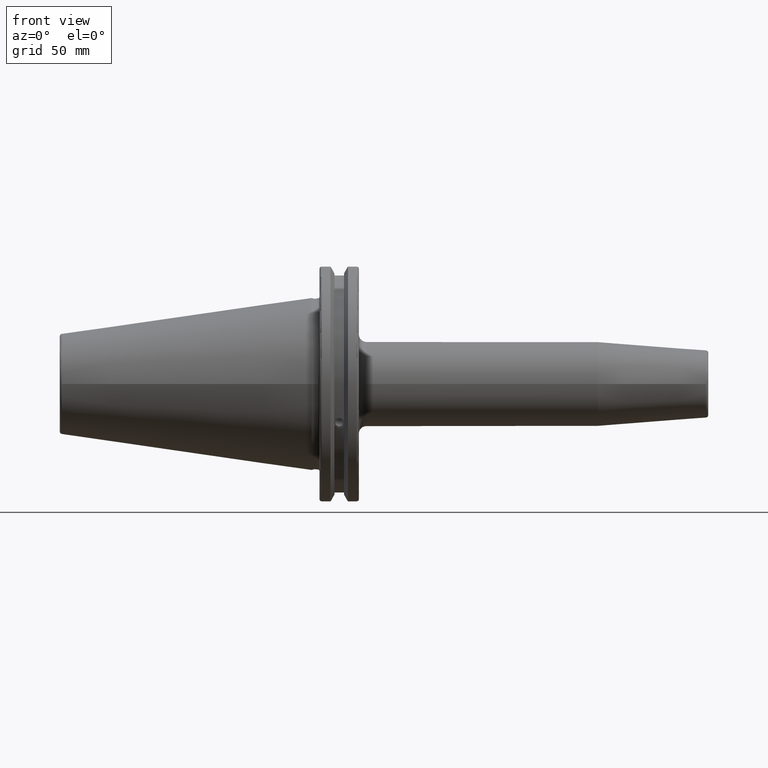
[diagram: clean part render]
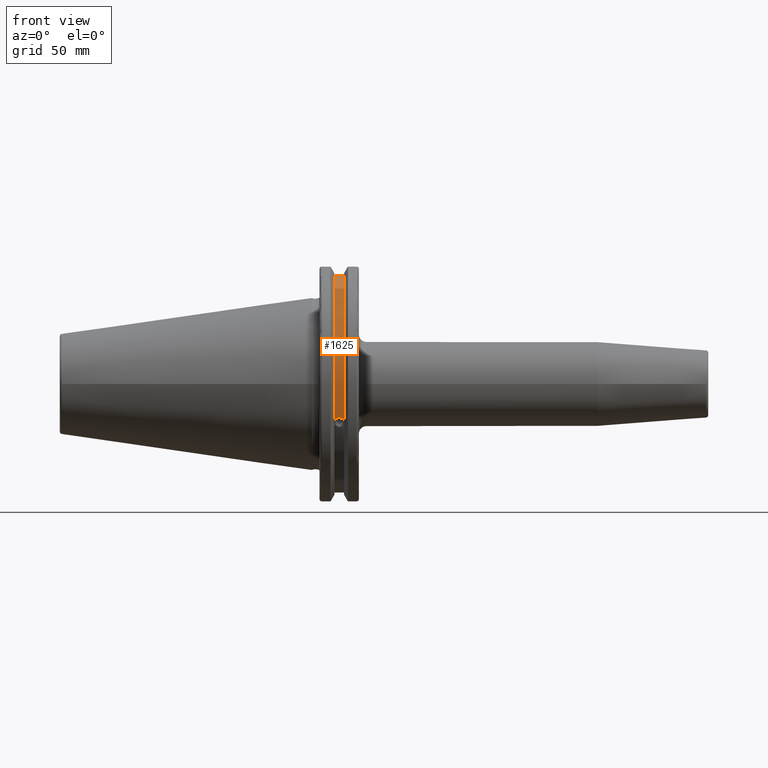
[diagram: same view with one face highlighted and labeled with its STEP entity id]
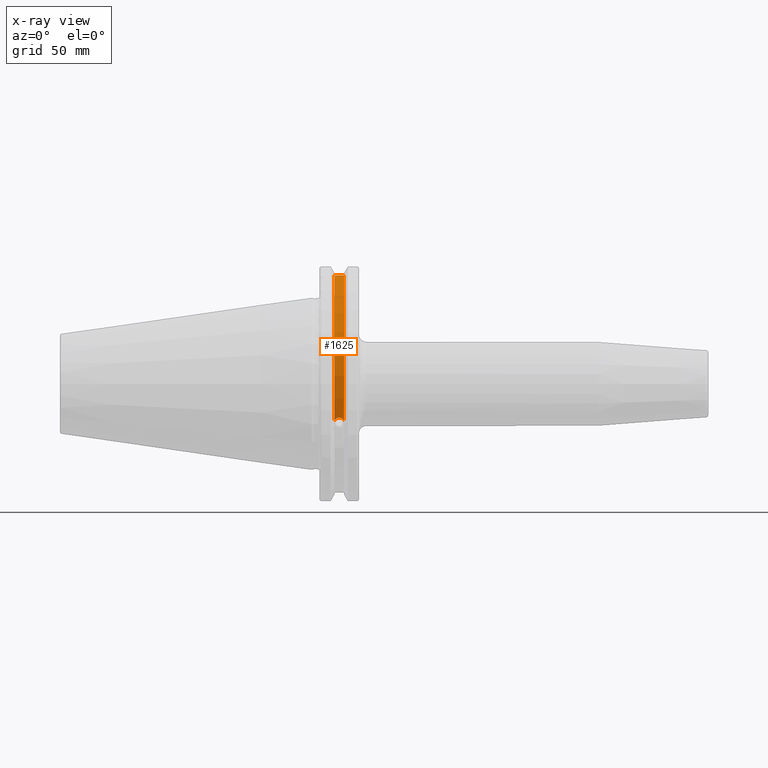
[diagram: x-ray of the same camera — body ghosted, the highlighted face saturated]
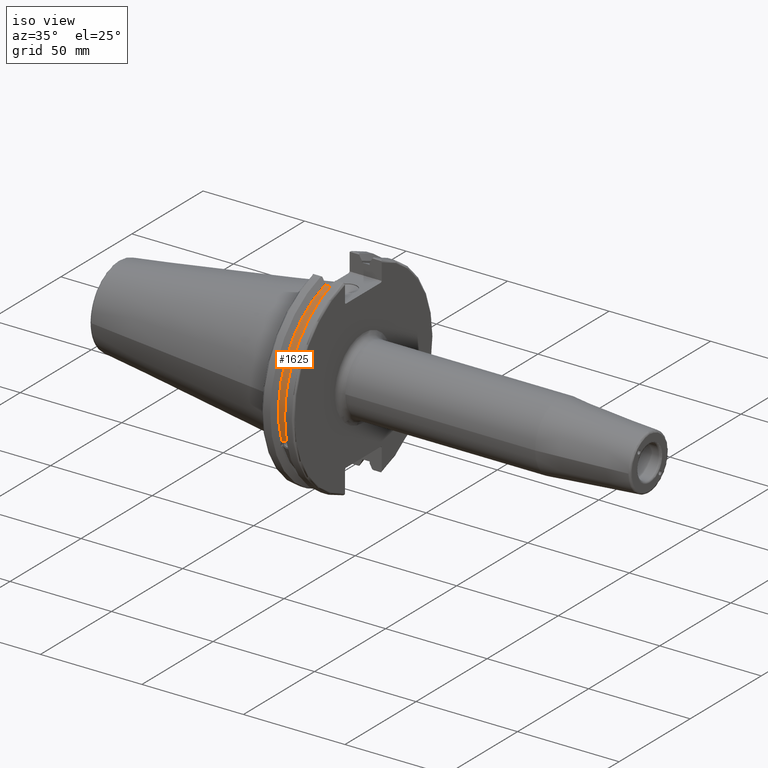
[diagram: same view with one face highlighted and labeled with its STEP entity id]
A machine part, front view. The second image highlights one B-rep face of the part: STEP entity #1625.
The next image is the same camera in x-ray: the body ghosted, the highlighted face saturated — about 0% of this face is hidden behind the body in this view.
A second angle (iso view) of the same face is appended — the face is thin or edge-on in the first view.
In plain terms, the highlighted cylindrical surface (partial cylindrical patch) has radius 45.6435 mm, axis along (1, 0, 0).
Its self-contained STEP definition (entity closure, byte-faithful):
#40=B_SPLINE_CURVE_WITH_KNOTS('',3,(#2580,#2581,#2582,#2583,#2584,#2585,
#2586,#2587,#2588,#2589,#2590,#2591,#2592,#2593),.UNSPECIFIED.,.F.,.F.,
(4,2,2,2,2,2,4),(0.40154831257669,0.474697095495631,0.553813286063443,0.632929476631254,
0.712045667199066,0.791161857766877,0.864310640685818),.UNSPECIFIED.);
#154=LINE('',#3067,#252);
#252=VECTOR('',#2133,10.);
#310=CYLINDRICAL_SURFACE('',#1823,45.6435);
#464=FACE_OUTER_BOUND('',#578,.T.);
#578=EDGE_LOOP('',(#1518,#1519,#1520,#1521));
#658=CIRCLE('',#1822,45.6435);
#659=CIRCLE('',#1824,45.6435);
#710=VERTEX_POINT('',#2577);
#711=VERTEX_POINT('',#2579);
#792=VERTEX_POINT('',#3064);
#793=VERTEX_POINT('',#3066);
#885=EDGE_CURVE('',#711,#710,#40,.T.);
#994=EDGE_CURVE('',#793,#792,#154,.T.);
#1052=EDGE_CURVE('',#792,#711,#658,.T.);
#1053=EDGE_CURVE('',#793,#710,#659,.T.);
#1518=ORIENTED_EDGE('',*,*,#885,.T.);
#1519=ORIENTED_EDGE('',*,*,#1053,.F.);
#1520=ORIENTED_EDGE('',*,*,#994,.T.);
#1521=ORIENTED_EDGE('',*,*,#1052,.T.);
#1625=ADVANCED_FACE('',(#464),#310,.T.);
#1822=AXIS2_PLACEMENT_3D('',#3233,#2270,#2271);
#1823=AXIS2_PLACEMENT_3D('',#3234,#2272,#2273);
#1824=AXIS2_PLACEMENT_3D('',#3235,#2274,#2275);
#2133=DIRECTION('',(-1.,0.,0.));
#2270=DIRECTION('center_axis',(1.,0.,0.));
#2271=DIRECTION('ref_axis',(0.,0.,-1.));
#2272=DIRECTION('center_axis',(1.,0.,0.));
#2273=DIRECTION('ref_axis',(0.,-0.888619069115281,0.458645996390125));
#2274=DIRECTION('center_axis',(1.,0.,0.));
#2275=DIRECTION('ref_axis',(0.,0.,-1.));
#2577=CARTESIAN_POINT('',(13.0491,-43.1779814500336,-14.7983448449669));
#2579=CARTESIAN_POINT('',(9.2191,-43.1779814500336,-14.7983448449669));
#2580=CARTESIAN_POINT('Ctrl Pts',(9.2191,-43.1779814500335,-14.7983448449669));
#2581=CARTESIAN_POINT('Ctrl Pts',(9.32532177598176,-43.2545173750974,-14.5750315766731));
#2582=CARTESIAN_POINT('Ctrl Pts',(9.47680807557665,-43.3223492818373,-14.3712521044637));
#2583=CARTESIAN_POINT('Ctrl Pts',(9.83560503400179,-43.4340904392251,-14.0300988117073));
#2584=CARTESIAN_POINT('Ctrl Pts',(10.0717203280543,-43.4832903960863,-13.8760243976176));
#2585=CARTESIAN_POINT('Ctrl Pts',(10.5891059167872,-43.54802519266,-13.6715068146718));
#2586=CARTESIAN_POINT('Ctrl Pts',(10.870379364774,-43.5636826100883,-13.6211104428929));
#2587=CARTESIAN_POINT('Ctrl Pts',(11.397820635226,-43.5636826100883,-13.6211104428929));
#2588=CARTESIAN_POINT('Ctrl Pts',(11.6790940832128,-43.54802519266,-13.6715068146718));
#2589=CARTESIAN_POINT('Ctrl Pts',(12.1964796719457,-43.4832903960863,-13.8760243976176));
#2590=CARTESIAN_POINT('Ctrl Pts',(12.4325949659982,-43.4340904392251,-14.0300988117073));
#2591=CARTESIAN_POINT('Ctrl Pts',(12.7913919244233,-43.3223492818373,-14.3712521044637));
#2592=CARTESIAN_POINT('Ctrl Pts',(12.9428782240182,-43.2545173750974,-14.5750315766731));
#2593=CARTESIAN_POINT('Ctrl Pts',(13.0491,-43.1779814500335,-14.7983448449669));
#3064=CARTESIAN_POINT('',(9.2191,-12.95,43.7678716897452));
#3066=CARTESIAN_POINT('',(13.0491,-12.95,43.7678716897452));
#3067=CARTESIAN_POINT('',(11.1341,-12.95,43.7678716897452));
#3233=CARTESIAN_POINT('Origin',(9.2191,0.,0.));
#3234=CARTESIAN_POINT('Origin',(11.1341,0.,0.));
#3235=CARTESIAN_POINT('Origin',(13.0491,0.,0.));